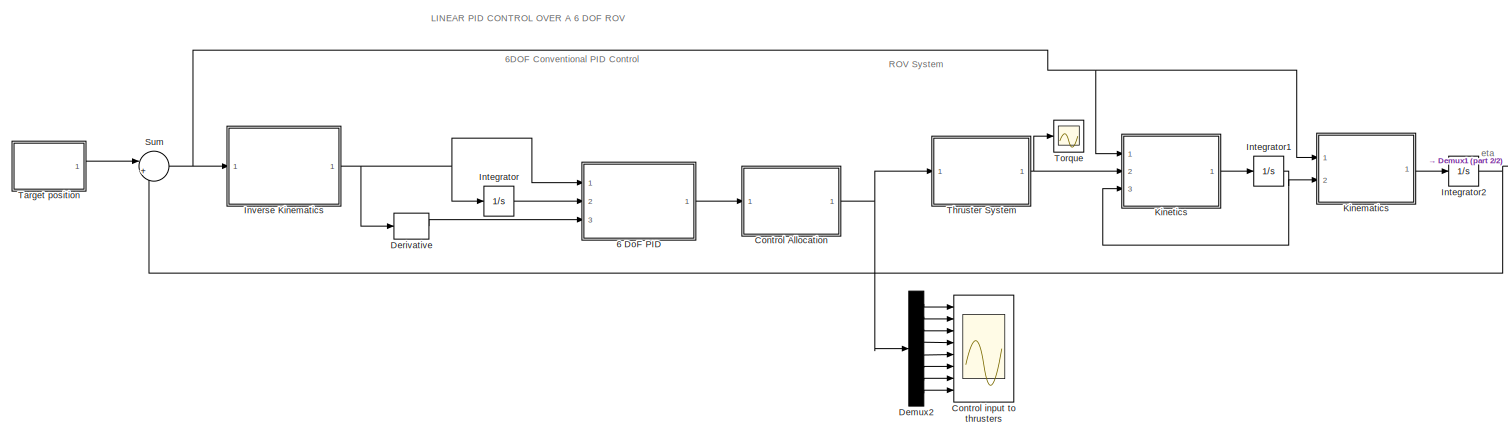
[diagram: root canvas - part 1/2, most of the canvas]
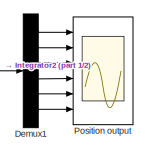
[diagram: root canvas - part 2/2, middle right region]
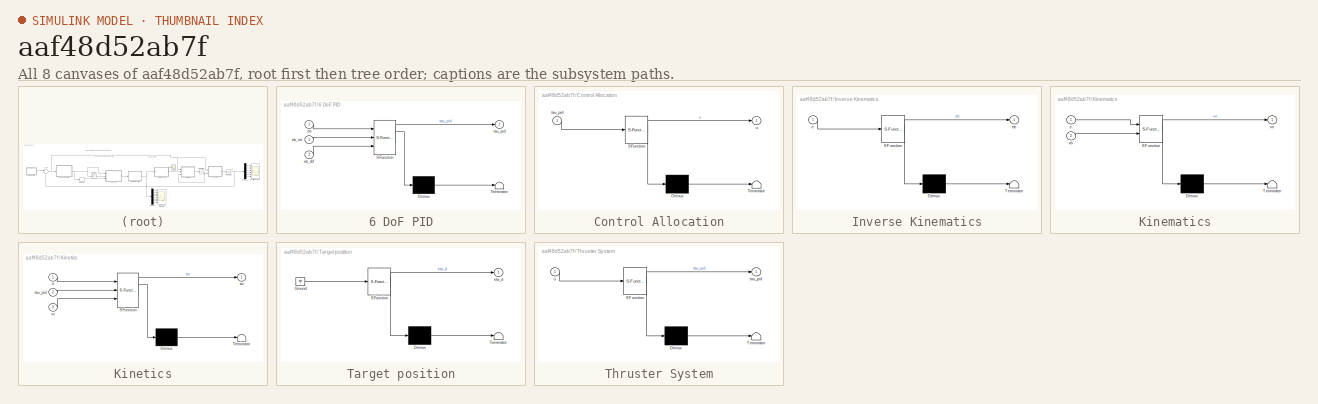
[diagram: thumbnail index - all 8 canvases of the model, root first then tree order]
MODEL slx_aaf48d52ab7f
KIND model
CONFIG AbsTol = auto
CONFIG EnableMultiTasking = off
CONFIG FixedStep = auto
CONFIG MaxStep = auto
CONFIG MinStep = auto
CONFIG RelTol = 1e-3
CONFIG SampleTimeConstraint = Unconstrained
CONFIG SolverName = VariableStepAuto
CONFIG StartTime = 0.0
CONFIG StopTime = 200
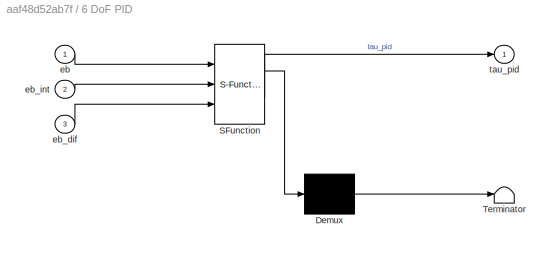
BLOCK [SubSystem] 6 DoF PID
  ErrorFcn = Stateflow.Translate.translate
  PermitHierarchicalResolution = ExplicitOnly
  Ports = [3, 1]
  RequestExecContextInheritance = off
  SFBlockType = MATLAB Function
  TreatAsAtomicUnit = on
BLOCK [Demux] 6 DoF PID/ Demux 
  Outputs = 1
  Ports = [1, 1]
BLOCK [S-Function] 6 DoF PID/ SFunction 
  EnableBusSupport = on
  FunctionName = sf_sfun
  PortCounts = [3 2]
  Ports = [3, 2]
  SFcnIsStateOwnerBlock = off
  SFunctionDeploymentMode = off
  Tag = Stateflow S-Function 3
BLOCK [Terminator] 6 DoF PID/ Terminator 
BLOCK [Inport] 6 DoF PID/eb
BLOCK [Inport] 6 DoF PID/eb_dif
  Port = 3
BLOCK [Inport] 6 DoF PID/eb_int
  Port = 2
BLOCK [Outport] 6 DoF PID/tau_pid
BLOCK [SubSystem] Control Allocation
  ErrorFcn = Stateflow.Translate.translate
  PermitHierarchicalResolution = ExplicitOnly
  Ports = [1, 1]
  RequestExecContextInheritance = off
  SFBlockType = MATLAB Function
  TreatAsAtomicUnit = on
BLOCK [Demux] Control Allocation/ Demux 
  Outputs = 1
  Ports = [1, 1]
BLOCK [S-Function] Control Allocation/ SFunction 
  EnableBusSupport = on
  FunctionName = sf_sfun
  PortCounts = [1 2]
  Ports = [1, 2]
  SFcnIsStateOwnerBlock = off
  SFunctionDeploymentMode = off
  Tag = Stateflow S-Function 4
BLOCK [Terminator] Control Allocation/ Terminator 
BLOCK [Inport] Control Allocation/tau_pid
BLOCK [Outport] Control Allocation/u
BLOCK [Scope] Control input to thrusters
  Floating = off
  NumInputPorts = 8
  Ports = [8]
  ScopeSpecificationString = Simulink.scopes.TimeScopeBlockCfg('CurrentConfiguration', extmgr.ConfigurationSet(extmgr.Configuration('Core','General UI',true,'DisplayFullSourceName',true),extmgr.Configuration('Core','Source UI',true),extmgr.Configuration('Sources','WiredSimulink',true,'DataLoggingVariableName','ScopeData6'),extmgr.Configuration('Visuals','Time Domain',true,'SerializedDisplays',{struct('MinYLimReal','-0.51353',...<+6959ch>
BLOCK [Demux] Demux1
  Outputs = 6
  Ports = [1, 6]
BLOCK [Demux] Demux2
  Outputs = 8
  Ports = [1, 8]
BLOCK [Derivative] Derivative
BLOCK [Integrator] Integrator
  InitialCondition = [0;0;0;0;0;0]
  Ports = [1, 1]
BLOCK [Integrator] Integrator1
  InitialCondition = [0;0;0;0;0;0]
  Ports = [1, 1]
BLOCK [Integrator] Integrator2
  ContinuousStateAttributes = 'eta'
  InitialCondition = [0;0;0;0;0;0]
  Ports = [1, 1]
BLOCK [SubSystem] Inverse Kinematics
  ErrorFcn = Stateflow.Translate.translate
  PermitHierarchicalResolution = ExplicitOnly
  Ports = [1, 1]
  RequestExecContextInheritance = off
  SFBlockType = MATLAB Function
  TreatAsAtomicUnit = on
BLOCK [Demux] Inverse Kinematics/ Demux 
  Outputs = 1
  Ports = [1, 1]
BLOCK [S-Function] Inverse Kinematics/ SFunction 
  EnableBusSupport = on
  FunctionName = sf_sfun
  PortCounts = [1 2]
  Ports = [1, 2]
  SFcnIsStateOwnerBlock = off
  SFunctionDeploymentMode = off
  Tag = Stateflow S-Function 2
BLOCK [Terminator] Inverse Kinematics/ Terminator 
BLOCK [Inport] Inverse Kinematics/e
BLOCK [Outport] Inverse Kinematics/eb
BLOCK [SubSystem] Kinematics
  ErrorFcn = Stateflow.Translate.translate
  PermitHierarchicalResolution = ExplicitOnly
  Ports = [2, 1]
  RequestExecContextInheritance = off
  SFBlockType = MATLAB Function
  TreatAsAtomicUnit = on
BLOCK [Demux] Kinematics/ Demux 
  Outputs = 1
  Ports = [1, 1]
BLOCK [S-Function] Kinematics/ SFunction 
  EnableBusSupport = on
  FunctionName = sf_sfun
  PortCounts = [2 2]
  Ports = [2, 2]
  SFcnIsStateOwnerBlock = off
  SFunctionDeploymentMode = off
  Tag = Stateflow S-Function 7
BLOCK [Terminator] Kinematics/ Terminator 
BLOCK [Inport] Kinematics/e
BLOCK [Inport] Kinematics/vb
  Port = 2
BLOCK [Outport] Kinematics/vn
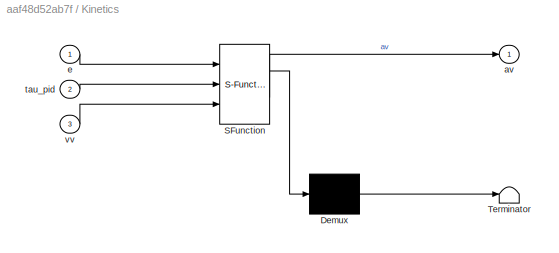
BLOCK [SubSystem] Kinetics
  ErrorFcn = Stateflow.Translate.translate
  PermitHierarchicalResolution = ExplicitOnly
  Ports = [3, 1]
  RequestExecContextInheritance = off
  SFBlockType = MATLAB Function
  TreatAsAtomicUnit = on
BLOCK [Demux] Kinetics/ Demux 
  Outputs = 1
  Ports = [1, 1]
BLOCK [S-Function] Kinetics/ SFunction 
  EnableBusSupport = on
  FunctionName = sf_sfun
  PortCounts = [3 2]
  Ports = [3, 2]
  SFcnIsStateOwnerBlock = off
  SFunctionDeploymentMode = off
  Tag = Stateflow S-Function 6
BLOCK [Terminator] Kinetics/ Terminator 
BLOCK [Outport] Kinetics/av
BLOCK [Inport] Kinetics/e
BLOCK [Inport] Kinetics/tau_pid
  Port = 2
BLOCK [Inport] Kinetics/vv
  Port = 3
BLOCK [Scope] Position output
  Floating = off
  NumInputPorts = 6
  Ports = [6]
  ScopeSpecificationString = Simulink.scopes.TimeScopeBlockCfg('CurrentConfiguration', extmgr.ConfigurationSet(extmgr.Configuration('Core','General UI',true,'DisplayFullSourceName',true),extmgr.Configuration('Core','Source UI',true),extmgr.Configuration('Sources','WiredSimulink',true,'DataLoggingVariableName','ScopeData1'),extmgr.Configuration('Visuals','Time Domain',true,'TimeAxisLabels','All','SerializedDisplays',{struct('M...<+5357ch>
BLOCK [Sum] Sum
  Inputs = |+-
  Ports = [2, 1]
BLOCK [SubSystem] Target position
  ErrorFcn = Stateflow.Translate.translate
  PermitHierarchicalResolution = ExplicitOnly
  Ports = [0, 1]
  RequestExecContextInheritance = off
  SFBlockType = MATLAB Function
  TreatAsAtomicUnit = on
BLOCK [Demux] Target position/ Demux 
  Outputs = 1
  Ports = [1, 1]
BLOCK [Ground] Target position/ Ground 
BLOCK [S-Function] Target position/ SFunction 
  EnableBusSupport = on
  FunctionName = sf_sfun
  PortCounts = [1 2]
  Ports = [1, 2]
  SFcnIsStateOwnerBlock = off
  SFunctionDeploymentMode = off
  Tag = Stateflow S-Function 1
BLOCK [Terminator] Target position/ Terminator 
BLOCK [Outport] Target position/eta_d
BLOCK [SubSystem] Thruster System
  ErrorFcn = Stateflow.Translate.translate
  PermitHierarchicalResolution = ExplicitOnly
  Ports = [1, 1]
  RequestExecContextInheritance = off
  SFBlockType = MATLAB Function
  TreatAsAtomicUnit = on
BLOCK [Demux] Thruster System/ Demux 
  Outputs = 1
  Ports = [1, 1]
BLOCK [S-Function] Thruster System/ SFunction 
  EnableBusSupport = on
  FunctionName = sf_sfun
  PortCounts = [1 2]
  Ports = [1, 2]
  SFcnIsStateOwnerBlock = off
  SFunctionDeploymentMode = off
  Tag = Stateflow S-Function 5
BLOCK [Terminator] Thruster System/ Terminator 
BLOCK [Outport] Thruster System/tau_pid
BLOCK [Inport] Thruster System/u
BLOCK [Scope] Torque
  Floating = off
  NumInputPorts = 1
  Ports = [1]
  ScopeSpecificationString = Simulink.scopes.TimeScopeBlockCfg('CurrentConfiguration', extmgr.ConfigurationSet(extmgr.Configuration('Core','General UI',true),extmgr.Configuration('Core','Source UI',true),extmgr.Configuration('Sources','WiredSimulink',true,'DataLoggingVariableName','ScopeData2'),extmgr.Configuration('Visuals','Time Domain',true,'SerializedDisplays',{struct('MinYLimReal','-35.73343','MaxYLimReal','22.70637','YL...<+1510ch>
ANNOTATION (root): 6DOF Conventional PID Control
ANNOTATION (root): LINEAR PID CONTROL OVER A 6 DOF ROV
ANNOTATION (root): ROV System
ANNOTATION (root): eta
LINE 6 DoF PID:1 -> Control Allocation:1
NET Control Allocation:1 -> Demux2:1, Thruster System:1
LINE Demux1:1 -> Position output:1
LINE Demux1:2 -> Position output:2
LINE Demux1:3 -> Position output:3
LINE Demux1:4 -> Position output:4
LINE Demux1:5 -> Position output:5
LINE Demux1:6 -> Position output:6
LINE Demux2:1 -> Control input to thrusters:1
LINE Demux2:2 -> Control input to thrusters:2
LINE Demux2:3 -> Control input to thrusters:3
LINE Demux2:4 -> Control input to thrusters:4
LINE Demux2:5 -> Control input to thrusters:5
LINE Demux2:6 -> Control input to thrusters:6
LINE Demux2:7 -> Control input to thrusters:7
LINE Demux2:8 -> Control input to thrusters:8
LINE Derivative:1 -> 6 DoF PID:3
NET Integrator1:1 -> Kinematics:2, Kinetics:3
NET Integrator2:1 -> Demux1:1, Sum:2
LINE Integrator:1 -> 6 DoF PID:2
NET Inverse Kinematics:1 -> 6 DoF PID:1, Derivative:1, Integrator:1
LINE Kinematics:1 -> Integrator2:1
LINE Kinetics:1 -> Integrator1:1
NET Sum:1 -> Inverse Kinematics:1, Kinematics:1, Kinetics:1
LINE Target position:1 -> Sum:1
NET Thruster System:1 -> Kinetics:2, Torque:1
note: NET lines group one-source signal fan-out (src -> all destinations, sorted); 1:1 wires keep LINE
CHART Target position states=1 transitions=1
  STATE_LABEL 'eML_blk_kernel()'
  STATE_LABEL 'SCRIPT:\nfunction eta_d = fcn()\n\neta_d = [3;4;1;1.57;0;0];\n'
CHART Inverse Kinematics states=1 transitions=1
  STATE_LABEL 'eML_blk_kernel()'
  STATE_LABEL 'SCRIPT:\nfunction eb = fcn(e)\n\nphi=e(4);\ntheta=e(5);\npsi=e(6);\nR=[cos(psi)*cos(theta),-sin(psi)*cos(phi)+cos(psi)*sin(theta)*sin(phi),sin(psi)*sin(phi)+cos(psi)*cos(phi)*sin(theta);\n    sin(psi)*cos(theta),cos(psi)*cos(phi)+sin(psi)*sin(theta)*sin(phi),-cos(psi)*sin(phi)+sin(theta)*sin(psi)*cos(phi);\n    -sin(theta),cos(theta)*sin(phi),cos(theta)*cos(phi)];\n\nT=[1,sin(phi)*tan(theta),cos(phi)*tan(th...<+134ch>'
CHART 6 DoF PID states=1 transitions=1
  STATE_LABEL 'eML_blk_kernel()'
  STATE_LABEL 'SCRIPT:\nfunction tau_pid = fcn(eb,eb_int,eb_dif)\n\nkp = [3;3;3;4;4;2];\nki = [0.2;0.2;0.2;0.3;0.3;0.1];\nkd = [2.5;2.5;0.5;0.5;1;0.5];\n\ntau_pid = kp.*eb + ki.*eb_int + kd.*eb_dif;'
CHART Control Allocation states=1 transitions=1
  STATE_LABEL 'eML_blk_kernel()'
  STATE_LABEL 'SCRIPT:\nfunction u = fcn(tau_pid)\n\nK = diag([40, 40, 40, 40, 40, 40, 40, 40]);\n\nT = [0.707,0.707, -0.707, -0.707, 0, 0, 0, 0; \n    -0.707, 0.707, -0.707, 0.707, 0, 0, 0, 0;\n    0, 0, 0, 0, -1, 1, 1, -1;\n    0.06, -0.06, 0.06, -0.06, -0.218, -0.218, 0.218, 0.218;\n    0.06, -0.06, 0.06, -0.06, 0.12, -0.12, 0.12, -0.12;\n    -0.1888, 0.1888, 0.1888, -0.1888, 0, 0, 0, 0];\nT_tran = transpose(T);\nT_inv =...<+70ch>'
CHART Thruster System states=1 transitions=1
  STATE_LABEL 'eML_blk_kernel()'
  STATE_LABEL 'SCRIPT:\nfunction tau_pid = fcn(u)\n\nK = diag([40, 40, 40, 40, 40, 40, 40, 40]);\n\nT = [0.707,0.707, -0.707, -0.707, 0, 0, 0, 0; \n    -0.707, 0.707, -0.707, 0.707, 0, 0, 0, 0;\n    0, 0, 0, 0, -1, 1, 1, -1;\n    0.06, -0.06, 0.06, -0.06, -0.218, -0.218, 0.218, 0.218;\n    0.06, -0.06, 0.06, -0.06, 0.12, -0.12, 0.12, -0.12;\n    -0.1888, 0.1888, 0.1888, -0.1888, 0, 0, 0, 0];\ntau_pid = (T*K)*u;\n'
CHART Kinetics states=1 transitions=1
  STATE_LABEL 'eML_blk_kernel()'
  STATE_LABEL 'SCRIPT:\nfunction av = fcn(e,tau_pid,vv)\n\nm = 11.5;\ng = 9.81;\nzg = 0.02;\nIx = 0.16;\nIy = 0.16;\nIz = 0.16;\nXu_dot = -5.5;\nYv_dot = -12.7;\nZw_dot = -14.57;\nKp_dot = -0.12;\nMq_dot = -0.12;\nNr_dot = -0.12;\nW = 112.8; % = m*g\nB = 117.8; % = net buoyancy + W\nphi=e(4);\ntheta=e(5);\nu = vv(1);\nv = vv(1);\nw = vv(2);\np=vv(4);\nq=vv(5);\nr=vv(6);\nMRB=[m,0,0,0,m*zg,0;\n    0,m,0,-m*zg,0,0;\n    0,0,m,0,0,0;\n    0,-...<+964ch>'
CHART Kinematics states=1 transitions=1
  STATE_LABEL 'eML_blk_kernel()'
  STATE_LABEL 'SCRIPT:\nfunction vn = fcn(e,vb)\n\nphi=e(4);\ntheta=e(5);\npsi=e(6);\nR=[cos(psi)*cos(theta),-sin(psi)*cos(phi)+cos(psi)*sin(theta)*sin(phi),sin(psi)*sin(phi)+cos(psi)*cos(phi)*sin(theta);\n   sin(psi)*cos(theta),cos(psi)*cos(phi)+sin(psi)*sin(theta)*sin(phi),-cos(psi)*sin(phi)+sin(theta)*sin(psi)*cos(phi);\n   -sin(theta),cos(theta)*sin(phi),cos(theta)*cos(phi)];\nT=[1,sin(phi)*tan(theta),cos(phi)*tan(th...<+121ch>'
CHART  states=0 transitions=0
CHART  states=0 transitions=0
CHART  states=0 transitions=0
CHART  states=0 transitions=0
CHART  states=0 transitions=0
CHART  states=0 transitions=0
CHART  states=0 transitions=0
